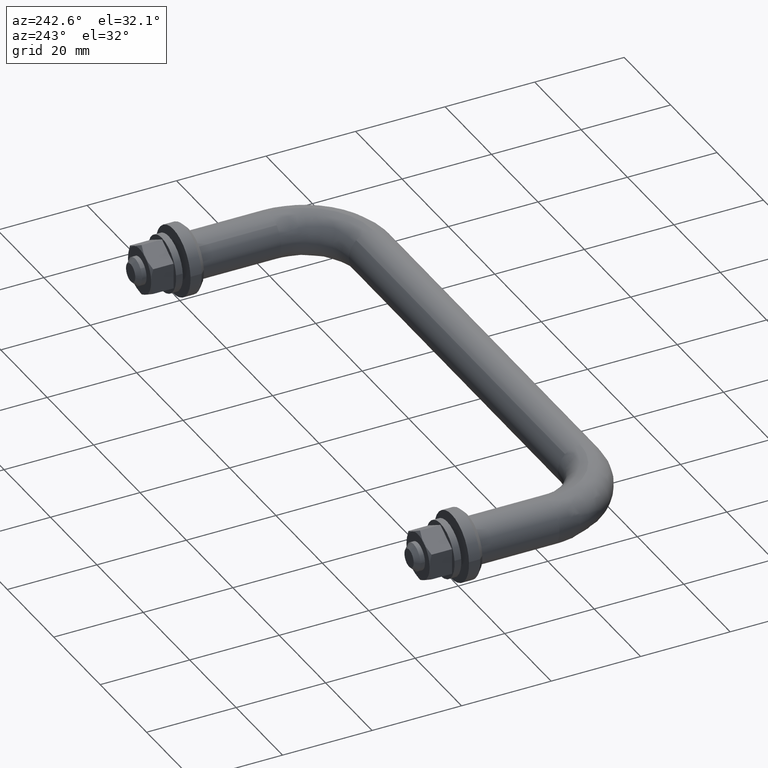
[diagram: clean part render]
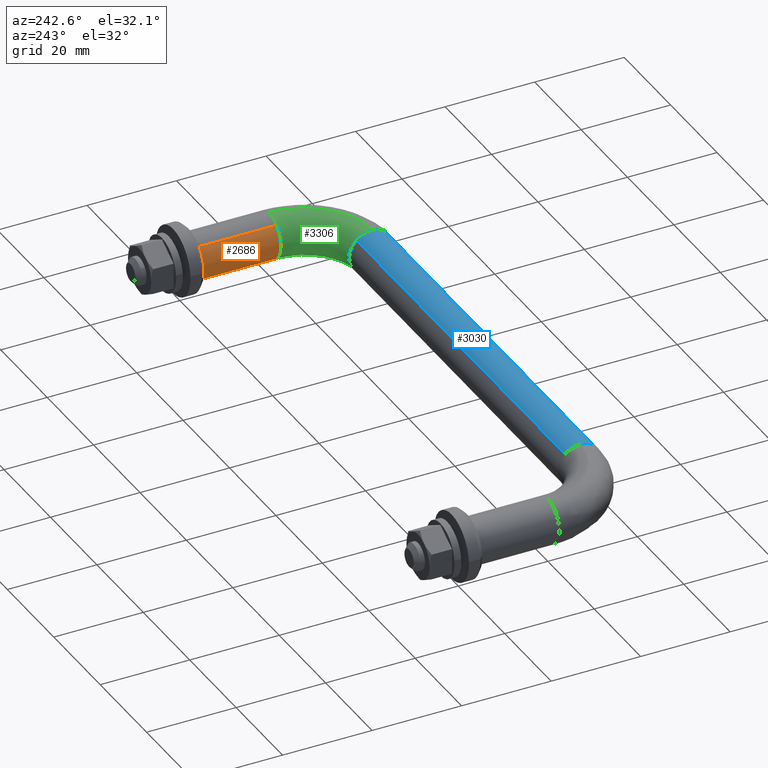
[diagram: same view with three faces highlighted in distinct colors, each labeled with its STEP entity id]
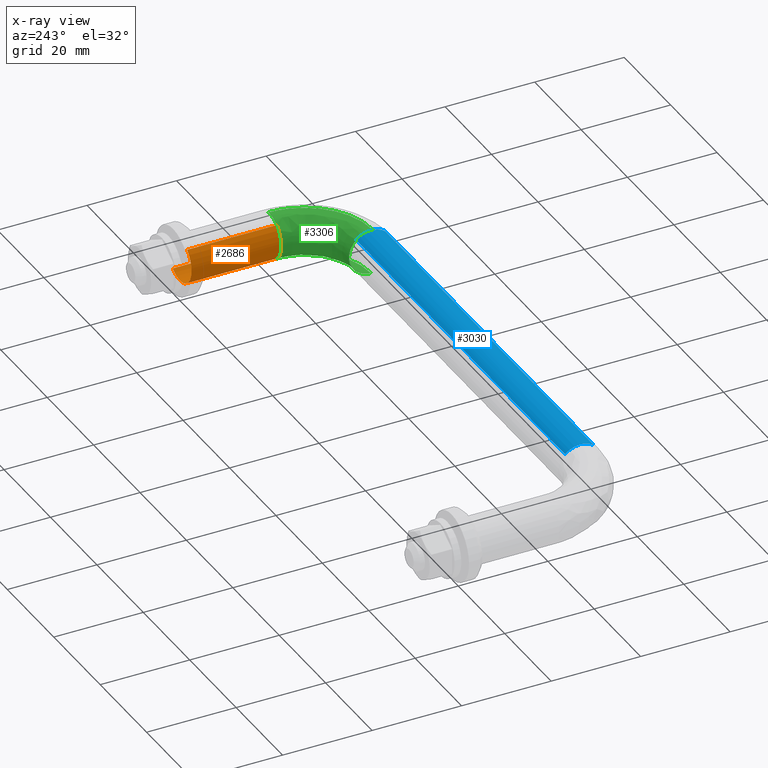
[diagram: x-ray of the same camera — body ghosted, the three highlighted faces saturated]
A machine part, auxiliary view with three faces highlighted in distinct colors.
The next image is the same camera in x-ray (body ghosted, the three faces saturated) — at least one of them is partly hidden behind the body in this view.
Their STEP definitions:

[orange] entity #2686 — the highlighted face is a freeform B-spline surface patch.
#2573=CARTESIAN_POINT('',(123.112573183188100,-20.500000000635438,-3.913040784262069));
#2574=CARTESIAN_POINT('',(119.199532398926020,-20.500000000635442,-7.025613967450165));
#2575=CARTESIAN_POINT('',(116.086959215737910,-20.500000000635438,-3.112573183188096));
#2576=CARTESIAN_POINT('',(112.974386032549840,-20.500000000635442,0.800467601073974));
#2577=CARTESIAN_POINT('',(116.887426816811900,-20.500000000635438,3.913040784262069));
#2578=CARTESIAN_POINT('',(123.112573183188100,0.512500000015898,-3.913040784262069));
#2579=CARTESIAN_POINT('',(119.199532398926020,0.512500000015898,-7.025613967450165));
#2580=CARTESIAN_POINT('',(116.086959215737910,0.512500000015898,-3.112573183188096));
#2581=CARTESIAN_POINT('',(112.974386032549840,0.512500000015897,0.800467601073974));
#2582=CARTESIAN_POINT('',(116.887426816811900,0.512500000015897,3.913040784262069));
#2590=(BOUNDED_SURFACE()B_SPLINE_SURFACE(2,1,((#2573,#2578),(#2574,#2579),(#2575,#2580),(#2576,#2581),(#2577,#2582)),.UNSPECIFIED.,.F.,.F.,.U.)B_SPLINE_SURFACE_WITH_KNOTS((3,2,3),(2,2),(0.0,8.284271247461904,16.568542494923811),(0.0,21.012500000651340),.UNSPECIFIED.)GEOMETRIC_REPRESENTATION_ITEM()RATIONAL_B_SPLINE_SURFACE(((1.0,1.0),(0.707106781186548,0.707106781186548),(1.0,1.0),(0.707106781186548,0.707106781186548),(1.0,1.0)))REPRESENTATION_ITEM('')SURFACE());
#2591=CARTESIAN_POINT('',(119.937169799536900,-20.000000000594721,-4.999605221005929));
#2592=VERTEX_POINT('',#2591);
#2593=CARTESIAN_POINT('',(123.112570831137400,-19.999999999999869,-3.913042655165403));
#2594=VERTEX_POINT('',#2593);
#2595=CARTESIAN_POINT('',(119.937169799536850,-20.000000000594724,-4.999605221005929));
#2596=CARTESIAN_POINT('',(119.968583658994090,-19.999999999999996,-5.0));
#2597=CARTESIAN_POINT('',(120.0,-20.0,-5.0));
#2598=CARTESIAN_POINT('',(121.746076481151960,-20.0,-5.0));
#2599=CARTESIAN_POINT('',(123.112570831137380,-19.999999999999865,-3.913042655165403));
#2607=(BOUNDED_CURVE()B_SPLINE_CURVE(2,(#2595,#2596,#2597,#2598,#2599),.UNSPECIFIED.,.F.,.U.)B_SPLINE_CURVE_WITH_KNOTS((3,2,3),(0.247784295848113,0.250000000000000,0.357863786403069),.UNSPECIFIED.)CURVE()GEOMETRIC_REPRESENTATION_ITEM()RATIONAL_B_SPLINE_CURVE((0.994854295474578,0.997404141116062,1.0,0.873629713627994,0.856305647871385))REPRESENTATION_ITEM(''));
#2608=EDGE_CURVE('',#2592,#2594,#2607,.T.);
#2609=ORIENTED_EDGE('',*,*,#2608,.F.);
#2610=CARTESIAN_POINT('',(115.0,-20.0,0.0));
#2611=VERTEX_POINT('',#2610);
#2612=CARTESIAN_POINT('',(115.0,-20.0,0.0));
#2613=CARTESIAN_POINT('',(114.999999999999990,-20.000000000000007,-4.937559647469620));
#2614=CARTESIAN_POINT('',(119.937169799536820,-20.000000000594721,-4.999605221005929));
#2622=(BOUNDED_CURVE()B_SPLINE_CURVE(2,(#2612,#2613,#2614),.UNSPECIFIED.,.F.,.U.)B_SPLINE_CURVE_WITH_KNOTS((3,3),(0.0,0.247784295848113),.UNSPECIFIED.)CURVE()GEOMETRIC_REPRESENTATION_ITEM()RATIONAL_B_SPLINE_CURVE((1.0,0.709702640070486,0.994854295474578))REPRESENTATION_ITEM(''));
#2623=EDGE_CURVE('',#2611,#2592,#2622,.T.);
#2624=ORIENTED_EDGE('',*,*,#2623,.F.);
#2625=CARTESIAN_POINT('',(116.887429168862700,-19.999999999999869,3.913042655165409));
#2626=VERTEX_POINT('',#2625);
#2627=CARTESIAN_POINT('',(116.887429168862600,-19.999999999999869,3.913042655165410));
#2628=CARTESIAN_POINT('',(114.999999999999990,-19.999999999999993,2.411715556397347));
#2629=CARTESIAN_POINT('',(115.0,-20.0,0.0));
#2637=(BOUNDED_CURVE()B_SPLINE_CURVE(2,(#2627,#2628,#2629),.UNSPECIFIED.,.F.,.U.)B_SPLINE_CURVE_WITH_KNOTS((3,3),(0.857863786403068,1.0),.UNSPECIFIED.)CURVE()GEOMETRIC_REPRESENTATION_ITEM()RATIONAL_B_SPLINE_CURVE((0.856305647871386,0.833477067558553,1.0))REPRESENTATION_ITEM(''));
#2638=EDGE_CURVE('',#2626,#2611,#2637,.T.);
#2639=ORIENTED_EDGE('',*,*,#2638,.F.);
#2640=CARTESIAN_POINT('',(116.887431645887900,1.459943E-014,3.913044625472847));
#2641=VERTEX_POINT('',#2640);
#2642=CARTESIAN_POINT('',(116.887429168862700,-19.999999999999869,3.913042655165409));
#2643=CARTESIAN_POINT('',(116.887431645887900,1.459943E-014,3.913044625472847));
#2644=QUASI_UNIFORM_CURVE('',1,(#2642,#2643),.UNSPECIFIED.,.F.,.U.);
#2645=EDGE_CURVE('',#2626,#2641,#2644,.T.);
#2646=ORIENTED_EDGE('',*,*,#2645,.T.);
#2647=CARTESIAN_POINT('',(115.0,1.387779E-014,0.0));
#2648=VERTEX_POINT('',#2647);
#2649=CARTESIAN_POINT('',(116.887431645887940,1.459943E-014,3.913044625472847));
#2650=CARTESIAN_POINT('',(114.999999999999990,1.387779E-014,2.411717507126609));
#2651=CARTESIAN_POINT('',(115.0,1.387779E-014,0.0));
#2659=(BOUNDED_CURVE()B_SPLINE_CURVE(2,(#2649,#2650,#2651),.UNSPECIFIED.,.F.,.U.)B_SPLINE_CURVE_WITH_KNOTS((3,3),(0.857863690580181,1.0),.UNSPECIFIED.)CURVE()GEOMETRIC_REPRESENTATION_ITEM()RATIONAL_B_SPLINE_CURVE((0.856305678651812,0.833476955295057,1.0))REPRESENTATION_ITEM(''));
#2660=EDGE_CURVE('',#2641,#2648,#2659,.T.);
#2661=ORIENTED_EDGE('',*,*,#2660,.T.);
#2662=CARTESIAN_POINT('',(123.112568354112100,1.482148E-014,-3.913044625472846));
#2663=VERTEX_POINT('',#2662);
#2664=CARTESIAN_POINT('',(115.0,1.387779E-014,0.0));
#2665=CARTESIAN_POINT('',(114.999999999999970,1.387779E-014,-5.000000000000001));
#2666=CARTESIAN_POINT('',(120.0,1.387779E-014,-5.0));
#2667=CARTESIAN_POINT('',(121.746074705616190,1.387779E-014,-4.999999999999999));
#2668=CARTESIAN_POINT('',(123.112568354112110,1.482148E-014,-3.913044625472846));
#2676=(BOUNDED_CURVE()B_SPLINE_CURVE(2,(#2664,#2665,#2666,#2667,#2668),.UNSPECIFIED.,.F.,.U.)B_SPLINE_CURVE_WITH_KNOTS((3,2,3),(0.0,0.250000000000000,0.357863690580181),.UNSPECIFIED.)CURVE()GEOMETRIC_REPRESENTATION_ITEM()RATIONAL_B_SPLINE_CURVE((1.0,0.707106781186548,1.0,0.873629825891490,0.856305678651812))REPRESENTATION_ITEM(''));
#2677=EDGE_CURVE('',#2648,#2663,#2676,.T.);
#2678=ORIENTED_EDGE('',*,*,#2677,.T.);
#2679=CARTESIAN_POINT('',(123.112570831137400,-19.999999999999869,-3.913042655165403));
#2680=CARTESIAN_POINT('',(123.112568354112100,1.482148E-014,-3.913044625472846));
#2681=QUASI_UNIFORM_CURVE('',1,(#2679,#2680),.UNSPECIFIED.,.F.,.U.);
#2682=EDGE_CURVE('',#2594,#2663,#2681,.T.);
#2683=ORIENTED_EDGE('',*,*,#2682,.F.);
#2684=EDGE_LOOP('',(#2609,#2624,#2639,#2646,#2661,#2678,#2683));
#2685=FACE_OUTER_BOUND('',#2684,.T.);
#2686=ADVANCED_FACE('',(#2685),#2590,.T.);

[blue] entity #3030 — the highlighted face is a freeform B-spline surface patch.
#2813=CARTESIAN_POINT('',(105.000000000448300,-38.040222707736262,3.969514564947689));
#2814=VERTEX_POINT('',#2813);
#2828=CARTESIAN_POINT('',(15.0,-38.040222708103272,3.969514565426509));
#2829=VERTEX_POINT('',#2828);
#2830=CARTESIAN_POINT('',(15.0,-38.040222708103272,3.969514565426509));
#2831=CARTESIAN_POINT('',(105.000000000448300,-38.040222707736262,3.969514564947689));
#2832=QUASI_UNIFORM_CURVE('',1,(#2830,#2831),.UNSPECIFIED.,.F.,.U.);
#2833=EDGE_CURVE('',#2829,#2814,#2832,.T.);
#2882=CARTESIAN_POINT('',(14.999999999824469,-31.622050203416730,3.686387821537513));
#2883=VERTEX_POINT('',#2882);
#2897=CARTESIAN_POINT('',(105.0,-31.622051120767932,3.686388662266402));
#2898=VERTEX_POINT('',#2897);
#2899=CARTESIAN_POINT('',(14.999999999824469,-31.622050203416730,3.686387821537513));
#2900=CARTESIAN_POINT('',(105.0,-31.622051120767932,3.686388662266402));
#2901=QUASI_UNIFORM_CURVE('',1,(#2899,#2900),.UNSPECIFIED.,.F.,.U.);
#2902=EDGE_CURVE('',#2883,#2898,#2901,.T.);
#2952=CARTESIAN_POINT('',(12.749999996253440,-31.622048961921699,3.686386684050619));
#2953=CARTESIAN_POINT('',(12.749999996253441,-34.712458498676909,6.518225283060159));
#2954=CARTESIAN_POINT('',(12.749999996253447,-38.040222708102142,3.969514565427370));
#2955=CARTESIAN_POINT('',(107.306250131250200,-31.622048961921688,3.686386684050619));
#2956=CARTESIAN_POINT('',(107.306250131250220,-34.712458498676895,6.518225283060159));
#2957=CARTESIAN_POINT('',(107.306250131250180,-38.040222708102128,3.969514565427370));
#2965=(BOUNDED_SURFACE()B_SPLINE_SURFACE(2,1,((#2952,#2955),(#2953,#2956),(#2954,#2957)),.UNSPECIFIED.,.F.,.F.,.U.)B_SPLINE_SURFACE_WITH_KNOTS((3,3),(2,2),(0.0,7.272191661774056),(0.0,94.556250134996802),.UNSPECIFIED.)GEOMETRIC_REPRESENTATION_ITEM()RATIONAL_B_SPLINE_SURFACE(((1.0,1.0),(0.742253967444162,0.742253967444162),(0.938140952186599,0.938140952186599)))REPRESENTATION_ITEM('')SURFACE());
#2966=CARTESIAN_POINT('',(105.000000001064090,-35.348666263059869,4.987828368839876));
#2967=VERTEX_POINT('',#2966);
#2968=CARTESIAN_POINT('',(105.000000000448340,-38.040222707736262,3.969514564947690));
#2969=CARTESIAN_POINT('',(105.000000000721220,-36.847439022908283,4.883059025046389));
#2970=CARTESIAN_POINT('',(105.000000001064140,-35.348666263059862,4.987828368839876));
#2978=(BOUNDED_CURVE()B_SPLINE_CURVE(2,(#2968,#2969,#2970),.UNSPECIFIED.,.F.,.U.)B_SPLINE_CURVE_WITH_KNOTS((3,3),(0.644916377166534,0.737833686177733),.UNSPECIFIED.)CURVE()GEOMETRIC_REPRESENTATION_ITEM()RATIONAL_B_SPLINE_CURVE((0.857271138856580,0.874615817626166,0.972879875631132))REPRESENTATION_ITEM(''));
#2979=EDGE_CURVE('',#2814,#2967,#2978,.T.);
#2980=ORIENTED_EDGE('',*,*,#2979,.T.);
#2981=CARTESIAN_POINT('',(105.000000001064070,-35.348666263059869,4.987828368839876));
#2982=CARTESIAN_POINT('',(105.000000000000010,-35.174545584575199,5.000000000000001));
#2983=CARTESIAN_POINT('',(105.0,-35.0,5.0));
#2984=CARTESIAN_POINT('',(104.999999999999990,-33.055608026206457,5.0));
#2985=CARTESIAN_POINT('',(104.999999999999990,-31.622051120767932,3.686388662266402));
#2993=(BOUNDED_CURVE()B_SPLINE_CURVE(2,(#2981,#2982,#2983,#2984,#2985),.UNSPECIFIED.,.F.,.U.)B_SPLINE_CURVE_WITH_KNOTS((3,2,3),(0.737833686177734,0.750000000000000,0.868415120677811),.UNSPECIFIED.)CURVE()GEOMETRIC_REPRESENTATION_ITEM()RATIONAL_B_SPLINE_CURVE((0.972879875631133,0.985746276734008,1.0,0.861268056593970,0.853959791750278))REPRESENTATION_ITEM(''));
#2994=EDGE_CURVE('',#2967,#2898,#2993,.T.);
#2995=ORIENTED_EDGE('',*,*,#2994,.T.);
#2996=ORIENTED_EDGE('',*,*,#2902,.F.);
#2997=CARTESIAN_POINT('',(14.999999999465739,-34.937169799687780,4.999605221007827));
#2998=VERTEX_POINT('',#2997);
#2999=CARTESIAN_POINT('',(14.999999999465743,-34.937169799687780,4.999605221007827));
#3000=CARTESIAN_POINT('',(14.999999999672221,-33.029006949407197,4.975625276488079));
#3001=CARTESIAN_POINT('',(14.999999999824468,-31.622050203416741,3.686387821537513));
#3009=(BOUNDED_CURVE()B_SPLINE_CURVE(2,(#2999,#3000,#3001),.UNSPECIFIED.,.F.,.U.)B_SPLINE_CURVE_WITH_KNOTS((3,3),(0.752215704141269,0.868415158253308),.UNSPECIFIED.)CURVE()GEOMETRIC_REPRESENTATION_ITEM()RATIONAL_B_SPLINE_CURVE((0.994854295499016,0.861131266012613,0.853959787112173))REPRESENTATION_ITEM(''));
#3010=EDGE_CURVE('',#2998,#2883,#3009,.T.);
#3011=ORIENTED_EDGE('',*,*,#3010,.F.);
#3012=CARTESIAN_POINT('',(15.000000000000004,-38.040222708103272,3.969514565426509));
#3013=CARTESIAN_POINT('',(15.0,-36.694753203157383,5.0));
#3014=CARTESIAN_POINT('',(15.0,-35.0,5.0));
#3015=CARTESIAN_POINT('',(14.999999999999998,-34.968583659144976,5.0));
#3016=CARTESIAN_POINT('',(14.999999999465739,-34.937169799687780,4.999605221007827));
#3024=(BOUNDED_CURVE()B_SPLINE_CURVE(2,(#3012,#3013,#3014,#3015,#3016),.UNSPECIFIED.,.F.,.U.)B_SPLINE_CURVE_WITH_KNOTS((3,2,3),(0.644916377221878,0.750000000000000,0.752215704141270),.UNSPECIFIED.)CURVE()GEOMETRIC_REPRESENTATION_ITEM()RATIONAL_B_SPLINE_CURVE((0.857271138877242,0.876886877919749,1.0,0.997404141128501,0.994854295499015))REPRESENTATION_ITEM(''));
#3025=EDGE_CURVE('',#2829,#2998,#3024,.T.);
#3026=ORIENTED_EDGE('',*,*,#3025,.F.);
#3027=ORIENTED_EDGE('',*,*,#2833,.T.);
#3028=EDGE_LOOP('',(#2980,#2995,#2996,#3011,#3026,#3027));
#3029=FACE_OUTER_BOUND('',#3028,.T.);
#3030=ADVANCED_FACE('',(#3029),#2965,.T.);

[green] entity #3306 — the highlighted face is a freeform B-spline surface patch.
#2591=CARTESIAN_POINT('',(119.937169799536900,-20.000000000594721,-4.999605221005929));
#2592=VERTEX_POINT('',#2591);
#2610=CARTESIAN_POINT('',(115.0,-20.0,0.0));
#2611=VERTEX_POINT('',#2610);
#2612=CARTESIAN_POINT('',(115.0,-20.0,0.0));
#2613=CARTESIAN_POINT('',(114.999999999999990,-20.000000000000007,-4.937559647469620));
#2614=CARTESIAN_POINT('',(119.937169799536820,-20.000000000594721,-4.999605221005929));
#2622=(BOUNDED_CURVE()B_SPLINE_CURVE(2,(#2612,#2613,#2614),.UNSPECIFIED.,.F.,.U.)B_SPLINE_CURVE_WITH_KNOTS((3,3),(0.0,0.247784295848113),.UNSPECIFIED.)CURVE()GEOMETRIC_REPRESENTATION_ITEM()RATIONAL_B_SPLINE_CURVE((1.0,0.709702640070486,0.994854295474578))REPRESENTATION_ITEM(''));
#2623=EDGE_CURVE('',#2611,#2592,#2622,.T.);
#2625=CARTESIAN_POINT('',(116.887429168862700,-19.999999999999869,3.913042655165409));
#2626=VERTEX_POINT('',#2625);
#2627=CARTESIAN_POINT('',(116.887429168862600,-19.999999999999869,3.913042655165410));
#2628=CARTESIAN_POINT('',(114.999999999999990,-19.999999999999993,2.411715556397347));
#2629=CARTESIAN_POINT('',(115.0,-20.0,0.0));
#2637=(BOUNDED_CURVE()B_SPLINE_CURVE(2,(#2627,#2628,#2629),.UNSPECIFIED.,.F.,.U.)B_SPLINE_CURVE_WITH_KNOTS((3,3),(0.857863786403068,1.0),.UNSPECIFIED.)CURVE()GEOMETRIC_REPRESENTATION_ITEM()RATIONAL_B_SPLINE_CURVE((0.856305647871386,0.833477067558553,1.0))REPRESENTATION_ITEM(''));
#2638=EDGE_CURVE('',#2626,#2611,#2637,.T.);
#2752=CARTESIAN_POINT('',(120.348666261161990,-20.000000000619941,4.987828368972547));
#2753=VERTEX_POINT('',#2752);
#2754=CARTESIAN_POINT('',(120.348666261161990,-20.000000000619938,4.987828368972547));
#2755=CARTESIAN_POINT('',(120.174545582670320,-20.000000000000004,5.000000000000001));
#2756=CARTESIAN_POINT('',(120.0,-20.0,5.0));
#2757=CARTESIAN_POINT('',(118.253923518848110,-20.0,5.0));
#2758=CARTESIAN_POINT('',(116.887429168862600,-19.999999999999869,3.913042655165410));
#2766=(BOUNDED_CURVE()B_SPLINE_CURVE(2,(#2754,#2755,#2756,#2757,#2758),.UNSPECIFIED.,.F.,.U.)B_SPLINE_CURVE_WITH_KNOTS((3,2,3),(0.737833686308616,0.750000000000000,0.857863786403068),.UNSPECIFIED.)CURVE()GEOMETRIC_REPRESENTATION_ITEM()RATIONAL_B_SPLINE_CURVE((0.972879875907961,0.985746276887346,1.0,0.873629713627995,0.856305647871386))REPRESENTATION_ITEM(''));
#2767=EDGE_CURVE('',#2753,#2626,#2766,.T.);
#2897=CARTESIAN_POINT('',(105.0,-31.622051120767932,3.686388662266402));
#2898=VERTEX_POINT('',#2897);
#2904=CARTESIAN_POINT('',(105.0,-30.0,0.0));
#2905=VERTEX_POINT('',#2904);
#2906=CARTESIAN_POINT('',(104.999999999999990,-31.622051120767932,3.686388662266402));
#2907=CARTESIAN_POINT('',(104.999999999999990,-30.000000000000011,2.200054401981904));
#2908=CARTESIAN_POINT('',(105.0,-30.0,0.0));
#2916=(BOUNDED_CURVE()B_SPLINE_CURVE(2,(#2906,#2907,#2908),.UNSPECIFIED.,.F.,.U.)B_SPLINE_CURVE_WITH_KNOTS((3,3),(0.868415120677811,1.0),.UNSPECIFIED.)CURVE()GEOMETRIC_REPRESENTATION_ITEM()RATIONAL_B_SPLINE_CURVE((0.853959791750278,0.845838724592578,1.0))REPRESENTATION_ITEM(''));
#2917=EDGE_CURVE('',#2898,#2905,#2916,.T.);
#2919=CARTESIAN_POINT('',(105.000000127957610,-34.937169908600652,-4.999605222376536));
#2920=VERTEX_POINT('',#2919);
#2921=CARTESIAN_POINT('',(105.0,-30.0,0.0));
#2922=CARTESIAN_POINT('',(104.999999999999990,-30.000000000000007,-4.937559862907233));
#2923=CARTESIAN_POINT('',(105.000000127957590,-34.937169908600659,-4.999605222376536));
#2931=(BOUNDED_CURVE()B_SPLINE_CURVE(2,(#2921,#2922,#2923),.UNSPECIFIED.,.F.,.U.)B_SPLINE_CURVE_WITH_KNOTS((3,3),(0.0,0.247784303521010),.UNSPECIFIED.)CURVE()GEOMETRIC_REPRESENTATION_ITEM()RATIONAL_B_SPLINE_CURVE((1.0,0.709702631081128,0.994854313134611))REPRESENTATION_ITEM(''));
#2932=EDGE_CURVE('',#2905,#2920,#2931,.T.);
#2966=CARTESIAN_POINT('',(105.000000001064090,-35.348666263059869,4.987828368839876));
#2967=VERTEX_POINT('',#2966);
#2981=CARTESIAN_POINT('',(105.000000001064070,-35.348666263059869,4.987828368839876));
#2982=CARTESIAN_POINT('',(105.000000000000010,-35.174545584575199,5.000000000000001));
#2983=CARTESIAN_POINT('',(105.0,-35.0,5.0));
#2984=CARTESIAN_POINT('',(104.999999999999990,-33.055608026206457,5.0));
#2985=CARTESIAN_POINT('',(104.999999999999990,-31.622051120767932,3.686388662266402));
#2993=(BOUNDED_CURVE()B_SPLINE_CURVE(2,(#2981,#2982,#2983,#2984,#2985),.UNSPECIFIED.,.F.,.U.)B_SPLINE_CURVE_WITH_KNOTS((3,2,3),(0.737833686177734,0.750000000000000,0.868415120677811),.UNSPECIFIED.)CURVE()GEOMETRIC_REPRESENTATION_ITEM()RATIONAL_B_SPLINE_CURVE((0.972879875631133,0.985746276734008,1.0,0.861268056593970,0.853959791750278))REPRESENTATION_ITEM(''));
#2994=EDGE_CURVE('',#2967,#2898,#2993,.T.);
#3243=CARTESIAN_POINT('',(103.932698318354890,-35.311512484592718,4.987828388444838));
#3244=CARTESIAN_POINT('',(121.538757938295280,-36.538757478084690,4.987828388444835));
#3245=CARTESIAN_POINT('',(120.311512454893800,-18.932697892293891,4.987828388444838));
#3246=CARTESIAN_POINT('',(103.942624695050480,-35.169108660711110,4.997807049440652));
#3247=CARTESIAN_POINT('',(121.384940190046290,-36.384939734115918,4.997807049440650));
#3248=CARTESIAN_POINT('',(120.169108631288340,-18.942624272952049,4.997807049440652));
#3249=CARTESIAN_POINT('',(103.952574509055340,-35.026368605134799,4.999605221019078));
#3250=CARTESIAN_POINT('',(121.230759260523510,-36.230758808883344,4.999605221019080));
#3251=CARTESIAN_POINT('',(120.026368575988910,-18.952574090928810,4.999605221019078));
#3252=CARTESIAN_POINT('',(104.300232544353260,-30.038865596961873,5.062435420435842));
#3253=CARTESIAN_POINT('',(115.843498854231530,-30.843498552498289,5.062435420435842));
#3254=CARTESIAN_POINT('',(115.038865577490030,-19.300232265009921,5.062435420435843));
#3255=CARTESIAN_POINT('',(104.304601574050790,-29.976187486442718,0.062830199416764));
#3256=CARTESIAN_POINT('',(115.775796979648650,-30.775796679799292,0.062830199416764));
#3257=CARTESIAN_POINT('',(114.976187467092470,-19.304601296451551,0.062830199416764));
#3258=CARTESIAN_POINT('',(104.308970603748340,-29.913509375923553,-4.936775021602313));
#3259=CARTESIAN_POINT('',(115.708095105065770,-30.708094807100284,-4.936775021602313));
#3260=CARTESIAN_POINT('',(114.913509356694850,-19.308970327893189,-4.936775021602315));
#3261=CARTESIAN_POINT('',(103.961312568450420,-34.901012384096489,-4.999605221019078));
#3262=CARTESIAN_POINT('',(121.095355511357720,-36.095355063485357,-4.999605221019080));
#3263=CARTESIAN_POINT('',(119.901012355193730,-18.961312153812077,-4.999605221019078));
#3271=(BOUNDED_SURFACE()B_SPLINE_SURFACE(2,2,((#3243,#3246,#3249,#3252,#3255,#3258,#3261),(#3244,#3247,#3250,#3253,#3256,#3259,#3262),(#3245,#3248,#3251,#3254,#3257,#3260,#3263)),.UNSPECIFIED.,.F.,.F.,.U.)B_SPLINE_SURFACE_WITH_KNOTS((3,3),(3,2,2,3),(0.0,27.971008545891149),(0.0,0.331370533878608,8.615641781340516,16.899913028802430),.UNSPECIFIED.)GEOMETRIC_REPRESENTATION_ITEM()RATIONAL_B_SPLINE_SURFACE(((0.895729732449210,0.905606490046838,0.916342095240933,0.647951709431553,0.916342095240933,0.647951709431553,0.916342095240933),(0.587800221482116,0.594281596491894,0.601326568744382,0.425202094466791,0.601326568744382,0.425202094466791,0.601326568744382),(0.895729743804760,0.905606501527600,0.916342106857795,0.647951717645915,0.916342106857795,0.647951717645915,0.916342106857795)))REPRESENTATION_ITEM('')SURFACE());
#3272=ORIENTED_EDGE('',*,*,#2767,.T.);
#3273=ORIENTED_EDGE('',*,*,#2638,.T.);
#3274=ORIENTED_EDGE('',*,*,#2623,.T.);
#3275=CARTESIAN_POINT('',(105.000000127957620,-34.937169908600652,-4.999605222376536));
#3276=CARTESIAN_POINT('',(119.937169799393760,-34.937169544668009,-4.999605221019078));
#3277=CARTESIAN_POINT('',(119.937169799536920,-20.000000000594724,-4.999605221005929));
#3285=(BOUNDED_CURVE()B_SPLINE_CURVE(2,(#3275,#3276,#3277),.UNSPECIFIED.,.F.,.U.)B_SPLINE_CURVE_WITH_KNOTS((3,3),(-1.734750773855825,-0.265249208424343),.UNSPECIFIED.)CURVE()GEOMETRIC_REPRESENTATION_ITEM()RATIONAL_B_SPLINE_CURVE((0.889029717267328,0.628638949386523,0.889029723547118))REPRESENTATION_ITEM(''));
#3286=EDGE_CURVE('',#2920,#2592,#3285,.T.);
#3287=ORIENTED_EDGE('',*,*,#3286,.F.);
#3288=ORIENTED_EDGE('',*,*,#2932,.F.);
#3289=ORIENTED_EDGE('',*,*,#2917,.F.);
#3290=ORIENTED_EDGE('',*,*,#2994,.F.);
#3291=CARTESIAN_POINT('',(105.000000001064090,-35.348666263059876,4.987828368839876));
#3292=CARTESIAN_POINT('',(120.348666256637300,-35.348666255749016,4.987828369202159));
#3293=CARTESIAN_POINT('',(120.348666261161970,-20.000000000619941,4.987828368972548));
#3301=(BOUNDED_CURVE()B_SPLINE_CURVE(2,(#3291,#3292,#3293),.UNSPECIFIED.,.F.,.U.)B_SPLINE_CURVE_WITH_KNOTS((3,3),(-1.734750791514324,-0.265249208425538),.UNSPECIFIED.)CURVE()GEOMETRIC_REPRESENTATION_ITEM()RATIONAL_B_SPLINE_CURVE((0.869031711825349,0.614498216572645,0.869031711846182))REPRESENTATION_ITEM(''));
#3302=EDGE_CURVE('',#2967,#2753,#3301,.T.);
#3303=ORIENTED_EDGE('',*,*,#3302,.T.);
#3304=EDGE_LOOP('',(#3272,#3273,#3274,#3287,#3288,#3289,#3290,#3303));
#3305=FACE_OUTER_BOUND('',#3304,.T.);
#3306=ADVANCED_FACE('',(#3305),#3271,.T.);